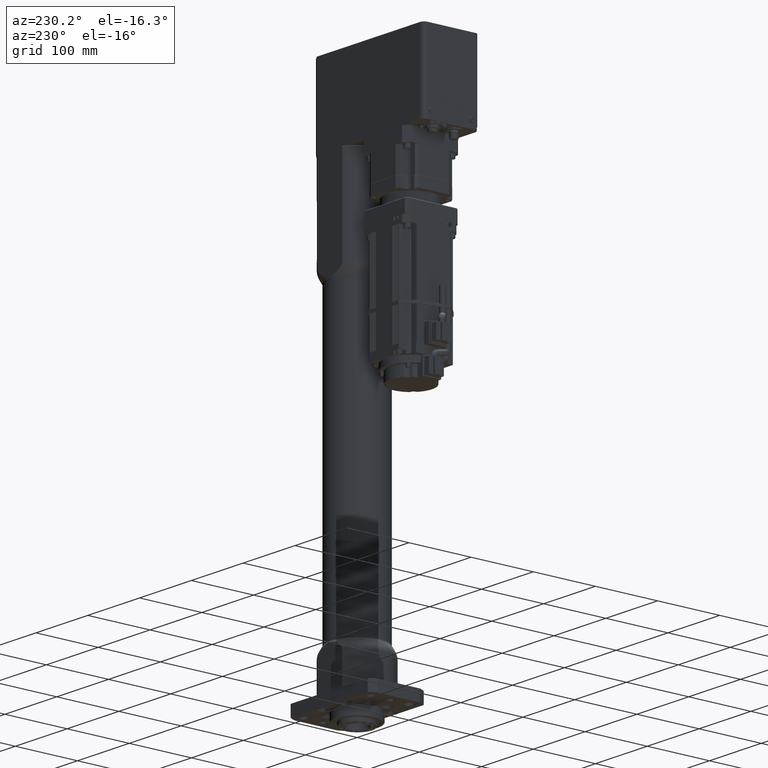
[diagram: clean part render]
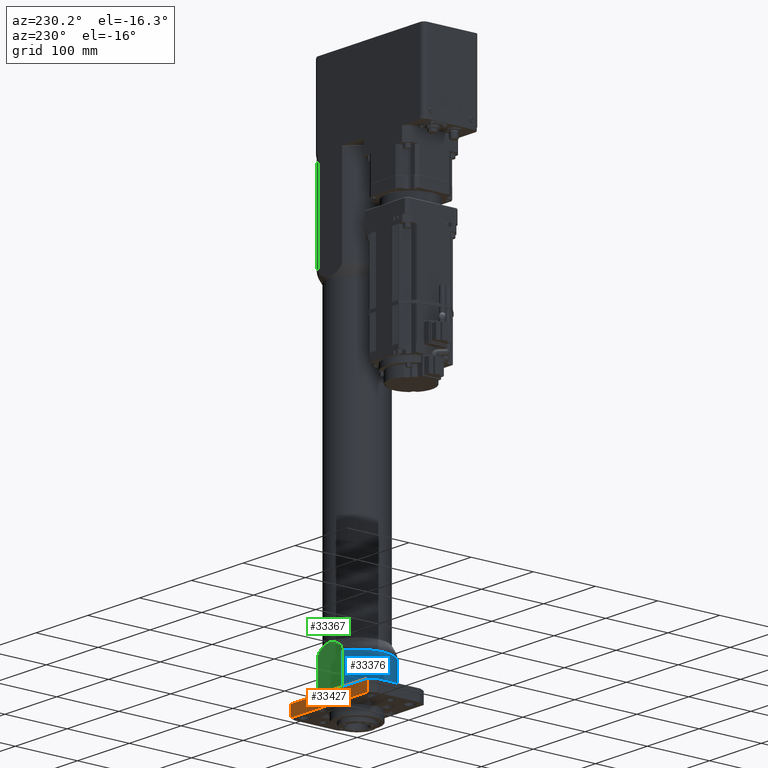
[diagram: same view with three faces highlighted in distinct colors, each labeled with its STEP entity id]
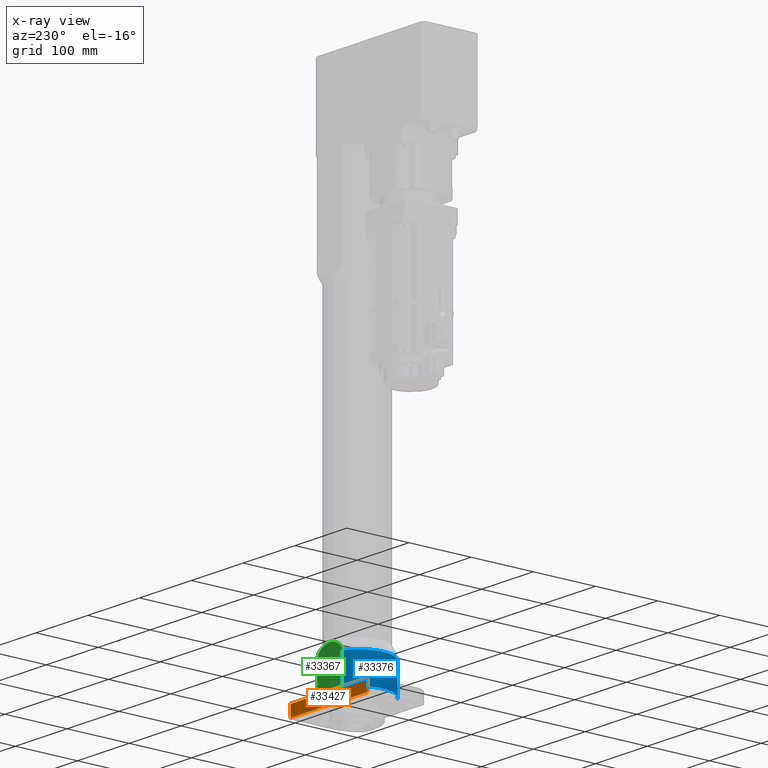
[diagram: x-ray of the same camera — body ghosted, the three highlighted faces saturated]
A machine part, auxiliary view with three faces highlighted in distinct colors.
The next image is the same camera in x-ray (body ghosted, the three faces saturated) — at least one of them is partly hidden behind the body in this view.
Their STEP definitions:

[orange] entity #33427 — the highlighted planar face has unit normal (0, 1, -0).
#1289=PLANE('',#36108);
#3045=FACE_OUTER_BOUND('',#4943,.T.);
#4943=EDGE_LOOP('',(#26292,#26293,#26294,#26295));
#9302=LINE('',#54467,#11998);
#9303=LINE('',#54470,#11999);
#9304=LINE('',#54472,#12000);
#9305=LINE('',#54473,#12001);
#11998=VECTOR('',#43260,10.);
#11999=VECTOR('',#43263,10.);
#12000=VECTOR('',#43264,10.);
#12001=VECTOR('',#43265,10.);
#14756=VERTEX_POINT('',#54463);
#14757=VERTEX_POINT('',#54465);
#14758=VERTEX_POINT('',#54469);
#14759=VERTEX_POINT('',#54471);
#18840=EDGE_CURVE('',#14756,#14757,#9302,.T.);
#18841=EDGE_CURVE('',#14758,#14756,#9303,.T.);
#18842=EDGE_CURVE('',#14759,#14757,#9304,.T.);
#18843=EDGE_CURVE('',#14758,#14759,#9305,.T.);
#26292=ORIENTED_EDGE('',*,*,#18841,.T.);
#26293=ORIENTED_EDGE('',*,*,#18840,.T.);
#26294=ORIENTED_EDGE('',*,*,#18842,.F.);
#26295=ORIENTED_EDGE('',*,*,#18843,.F.);
#33427=ADVANCED_FACE('',(#3045),#1289,.T.);
#36108=AXIS2_PLACEMENT_3D('',#54468,#43261,#43262);
#43260=DIRECTION('',(-1.66741034889409E-13,7.79443320540944E-15,1.));
#43261=DIRECTION('center_axis',(1.96876250009035E-13,1.,-7.79443320537661E-15));
#43262=DIRECTION('ref_axis',(-1.,1.96876250009033E-13,-1.66741034889411E-13));
#43263=DIRECTION('',(-1.,1.96876250009033E-13,-1.66741034889411E-13));
#43264=DIRECTION('',(-1.,1.96876250009033E-13,-1.66741034889411E-13));
#43265=DIRECTION('',(-1.66741034889409E-13,7.79443320540944E-15,1.));
#54463=CARTESIAN_POINT('',(-74.4580418757979,44.9999999999864,4.2525982735242E-11));
#54465=CARTESIAN_POINT('',(-74.4580418758009,44.9999999999865,18.0000000000425));
#54467=CARTESIAN_POINT('',(-74.4580418757979,44.9999999999864,4.2525982735242E-11));
#54468=CARTESIAN_POINT('Origin',(74.4580418760924,44.9999999999571,6.73594513500575E-11));
#54469=CARTESIAN_POINT('',(74.4580418760924,44.9999999999571,6.73594513500575E-11));
#54470=CARTESIAN_POINT('',(74.4580418760924,44.9999999999571,6.73594513500575E-11));
#54471=CARTESIAN_POINT('',(74.4580418760894,44.9999999999572,18.0000000000674));
#54472=CARTESIAN_POINT('',(74.4580418760894,44.9999999999572,18.0000000000674));
#54473=CARTESIAN_POINT('',(74.4580418760924,44.9999999999571,6.73594513500575E-11));

[blue] entity #33376 — the highlighted cylindrical surface (partial cylindrical patch) has radius 50 mm, axis along (-0, 0, 1).
#2994=FACE_OUTER_BOUND('',#4877,.T.);
#4877=EDGE_LOOP('',(#26097,#26098,#26099,#26100));
#6570=CIRCLE('',#36001,50.);
#6571=CIRCLE('',#36003,50.);
#9246=LINE('',#54100,#11942);
#9249=LINE('',#54174,#11945);
#11942=VECTOR('',#42960,10.);
#11945=VECTOR('',#42967,10.);
#14677=VERTEX_POINT('',#54097);
#14678=VERTEX_POINT('',#54099);
#14683=VERTEX_POINT('',#54157);
#14685=VERTEX_POINT('',#54173);
#18710=EDGE_CURVE('',#14678,#14677,#9246,.T.);
#18719=EDGE_CURVE('',#14685,#14683,#9249,.T.);
#18737=EDGE_CURVE('',#14678,#14683,#6570,.T.);
#18738=EDGE_CURVE('',#14685,#14677,#6571,.T.);
#26097=ORIENTED_EDGE('',*,*,#18710,.T.);
#26098=ORIENTED_EDGE('',*,*,#18738,.F.);
#26099=ORIENTED_EDGE('',*,*,#18719,.T.);
#26100=ORIENTED_EDGE('',*,*,#18737,.F.);
#30406=CYLINDRICAL_SURFACE('',#36002,50.);
#33376=ADVANCED_FACE('',(#2994),#30406,.T.);
#36001=AXIS2_PLACEMENT_3D('',#54249,#42999,#43000);
#36002=AXIS2_PLACEMENT_3D('',#54250,#43001,#43002);
#36003=AXIS2_PLACEMENT_3D('',#54251,#43003,#43004);
#42960=DIRECTION('',(1.66741034889409E-13,-7.79443320540401E-15,-1.));
#42967=DIRECTION('',(-1.66741034889409E-13,7.79443320540401E-15,1.));
#42999=DIRECTION('center_axis',(-1.66741034889409E-13,7.79443320540401E-15,
1.));
#43000=DIRECTION('ref_axis',(-1.,1.29112725371859E-13,-1.6674103488941E-13));
#43001=DIRECTION('center_axis',(-1.66741034889409E-13,7.79443320540401E-15,
1.));
#43002=DIRECTION('ref_axis',(-1.,1.29112725371859E-13,-1.6674103488941E-13));
#43003=DIRECTION('center_axis',(1.66741034889409E-13,-7.79443320540944E-15,
-1.));
#43004=DIRECTION('ref_axis',(-1.,1.29112725371859E-13,-1.6674103488941E-13));
#54097=CARTESIAN_POINT('',(-23.748684173936,43.9999999999808,18.000000000051));
#54099=CARTESIAN_POINT('',(-23.7486841739439,43.9999999999811,65.5166604984464));
#54100=CARTESIAN_POINT('',(-23.748684173936,43.9999999999808,18.000000000051));
#54157=CARTESIAN_POINT('',(-23.7486841739553,-44.0000000000189,65.5166604984471));
#54173=CARTESIAN_POINT('',(-23.7486841739474,-44.0000000000192,18.0000000000517));
#54174=CARTESIAN_POINT('',(-23.7486841739473,-44.0000000000193,18.0000000000517));
#54249=CARTESIAN_POINT('Origin',(1.26216308499065E-10,-2.19234746902002E-11,
65.5166604984507));
#54250=CARTESIAN_POINT('Origin',(1.34139285645056E-10,-2.22938401265988E-11,
18.0000000000553));
#54251=CARTESIAN_POINT('Origin',(1.34139285645056E-10,-2.22938401265988E-11,
18.0000000000553));

[green] entity #33367 — the highlighted planar face has unit normal (-0, -1, 0).
#194=(
BOUNDED_CURVE()
B_SPLINE_CURVE(2,(#54116,#54117,#54118),.UNSPECIFIED.,.F.,.F.)
B_SPLINE_CURVE_WITH_KNOTS((3,3),(0.,3.6677393919605),.UNSPECIFIED.)
CURVE()
GEOMETRIC_REPRESENTATION_ITEM()
RATIONAL_B_SPLINE_CURVE((1.,1.07546609262929,1.))
REPRESENTATION_ITEM('')
);
#1264=PLANE('',#35985);
#1750=B_SPLINE_CURVE_WITH_KNOTS('',3,(#54081,#54082,#54083,#54084,#54085,
#54086,#54087,#54088,#54089,#54090,#54091,#54092,#54093,#54094),
 .UNSPECIFIED.,.F.,.F.,(4,2,2,2,2,2,4),(2.87290259542781,3.03488626289047,
3.19686993035312,3.3866995389925,3.57652914763188,3.84561717323102,4.03415417366575),
 .UNSPECIFIED.);
#1751=B_SPLINE_CURVE_WITH_KNOTS('',3,(#54102,#54103,#54104,#54105,#54106,
#54107,#54108,#54109,#54110,#54111,#54112,#54113,#54114,#54115),
 .UNSPECIFIED.,.F.,.F.,(4,2,2,2,2,2,4),(7.4574562080455,7.64599320848023,
7.91508123407938,8.10491084271876,8.29474045135813,8.45672411882079,8.61870778628344),
 .UNSPECIFIED.);
#2985=FACE_OUTER_BOUND('',#4868,.T.);
#4868=EDGE_LOOP('',(#26044,#26045,#26046,#26047,#26048,#26049));
#9244=LINE('',#54096,#11940);
#9245=LINE('',#54098,#11941);
#9246=LINE('',#54100,#11942);
#11940=VECTOR('',#42958,10.);
#11941=VECTOR('',#42959,10.);
#11942=VECTOR('',#42960,10.);
#14674=VERTEX_POINT('',#54079);
#14675=VERTEX_POINT('',#54080);
#14676=VERTEX_POINT('',#54095);
#14677=VERTEX_POINT('',#54097);
#14678=VERTEX_POINT('',#54099);
#14679=VERTEX_POINT('',#54101);
#18707=EDGE_CURVE('',#14674,#14675,#1750,.T.);
#18708=EDGE_CURVE('',#14676,#14674,#9244,.T.);
#18709=EDGE_CURVE('',#14677,#14676,#9245,.T.);
#18710=EDGE_CURVE('',#14678,#14677,#9246,.T.);
#18711=EDGE_CURVE('',#14679,#14678,#1751,.T.);
#18712=EDGE_CURVE('',#14675,#14679,#194,.T.);
#26044=ORIENTED_EDGE('',*,*,#18707,.F.);
#26045=ORIENTED_EDGE('',*,*,#18708,.F.);
#26046=ORIENTED_EDGE('',*,*,#18709,.F.);
#26047=ORIENTED_EDGE('',*,*,#18710,.F.);
#26048=ORIENTED_EDGE('',*,*,#18711,.F.);
#26049=ORIENTED_EDGE('',*,*,#18712,.F.);
#33367=ADVANCED_FACE('',(#2985),#1264,.F.);
#35985=AXIS2_PLACEMENT_3D('',#54078,#42956,#42957);
#42956=DIRECTION('center_axis',(-1.28925730081261E-13,-1.,7.79443320538251E-15));
#42957=DIRECTION('ref_axis',(1.,-1.28925730081259E-13,1.6674103488941E-13));
#42958=DIRECTION('',(-1.66741034889409E-13,7.79443320540401E-15,1.));
#42959=DIRECTION('',(1.,-1.28925730081259E-13,1.6674103488941E-13));
#42960=DIRECTION('',(1.66741034889409E-13,-7.79443320540401E-15,-1.));
#54078=CARTESIAN_POINT('Origin',(-23.748684173936,43.9999999999808,18.000000000051));
#54079=CARTESIAN_POINT('',(23.7486841742077,43.999999999975,65.5166604984543));
#54080=CARTESIAN_POINT('',(17.4135144225932,43.9999999999759,75.5166604984533));
#54081=CARTESIAN_POINT('Ctrl Pts',(23.7486841742077,43.999999999975,65.5166604984543));
#54082=CARTESIAN_POINT('Ctrl Pts',(23.7486841742076,43.999999999975,66.0566060566632));
#54083=CARTESIAN_POINT('Ctrl Pts',(23.6994141425081,43.999999999975,66.6468955463847));
#54084=CARTESIAN_POINT('Ctrl Pts',(23.4886062750359,43.9999999999751,67.8074492088696));
#54085=CARTESIAN_POINT('Ctrl Pts',(23.3273240657455,43.9999999999751,68.377759800166));
#54086=CARTESIAN_POINT('Ctrl Pts',(22.9232767903103,43.9999999999751,69.4786670178272));
#54087=CARTESIAN_POINT('Ctrl Pts',(22.6269587479919,43.9999999999752,70.1059844094949));
#54088=CARTESIAN_POINT('Ctrl Pts',(21.9207607469562,43.9999999999753,71.2945597627314));
#54089=CARTESIAN_POINT('Ctrl Pts',(21.5116079175793,43.9999999999753,71.8562496014011));
#54090=CARTESIAN_POINT('Ctrl Pts',(20.5281513533759,43.9999999999755,73.0279462903685));
#54091=CARTESIAN_POINT('Ctrl Pts',(19.8257663311197,43.9999999999756,73.7152142859665));
#54092=CARTESIAN_POINT('Ctrl Pts',(18.5307143100488,43.9999999999758,74.7637744142569));
#54093=CARTESIAN_POINT('Ctrl Pts',(17.9691772269458,43.9999999999758,75.1624927710153));
#54094=CARTESIAN_POINT('Ctrl Pts',(17.4135144225932,43.9999999999759,75.5166604984533));
#54095=CARTESIAN_POINT('',(23.7486841742156,43.9999999999746,18.0000000000589));
#54096=CARTESIAN_POINT('',(23.7486841742156,43.9999999999746,18.0000000000589));
#54097=CARTESIAN_POINT('',(-23.748684173936,43.9999999999808,18.000000000051));
#54098=CARTESIAN_POINT('',(-11.8743420868975,43.9999999999792,18.000000000053));
#54099=CARTESIAN_POINT('',(-23.7486841739439,43.9999999999811,65.5166604984464));
#54100=CARTESIAN_POINT('',(-23.748684173936,43.9999999999808,18.000000000051));
#54101=CARTESIAN_POINT('',(-17.4135144223328,43.9999999999804,75.5166604984475));
#54102=CARTESIAN_POINT('Ctrl Pts',(-17.4135144223328,43.9999999999804,75.5166604984475));
#54103=CARTESIAN_POINT('Ctrl Pts',(-17.9691772266852,43.9999999999805,75.1624927710093));
#54104=CARTESIAN_POINT('Ctrl Pts',(-18.5307143097881,43.9999999999805,74.7637744142507));
#54105=CARTESIAN_POINT('Ctrl Pts',(-19.8257663308587,43.9999999999807,73.7152142859599));
#54106=CARTESIAN_POINT('Ctrl Pts',(-20.5281513531146,43.9999999999808,73.0279462903616));
#54107=CARTESIAN_POINT('Ctrl Pts',(-21.5116079173177,43.9999999999809,71.8562496013939));
#54108=CARTESIAN_POINT('Ctrl Pts',(-21.9207607466944,43.999999999981,71.294559762724));
#54109=CARTESIAN_POINT('Ctrl Pts',(-22.6269587477296,43.999999999981,70.1059844094873));
#54110=CARTESIAN_POINT('Ctrl Pts',(-22.9232767900479,43.9999999999811,69.4786670178195));
#54111=CARTESIAN_POINT('Ctrl Pts',(-23.3273240654827,43.9999999999811,68.3777598001583));
#54112=CARTESIAN_POINT('Ctrl Pts',(-23.4886062747728,43.9999999999811,67.8074492088618));
#54113=CARTESIAN_POINT('Ctrl Pts',(-23.6994141422447,43.9999999999811,66.6468955463768));
#54114=CARTESIAN_POINT('Ctrl Pts',(-23.748684173944,43.9999999999811,66.0566060566553));
#54115=CARTESIAN_POINT('Ctrl Pts',(-23.748684173944,43.9999999999811,65.5166604984464));
#54116=CARTESIAN_POINT('Ctrl Pts',(17.4135144225932,43.9999999999759,75.5166604984533));
#54117=CARTESIAN_POINT('Ctrl Pts',(1.28373553128335E-10,43.9999999999782,
86.6156665528494));
#54118=CARTESIAN_POINT('Ctrl Pts',(-17.4135144223328,43.9999999999804,75.5166604984475));